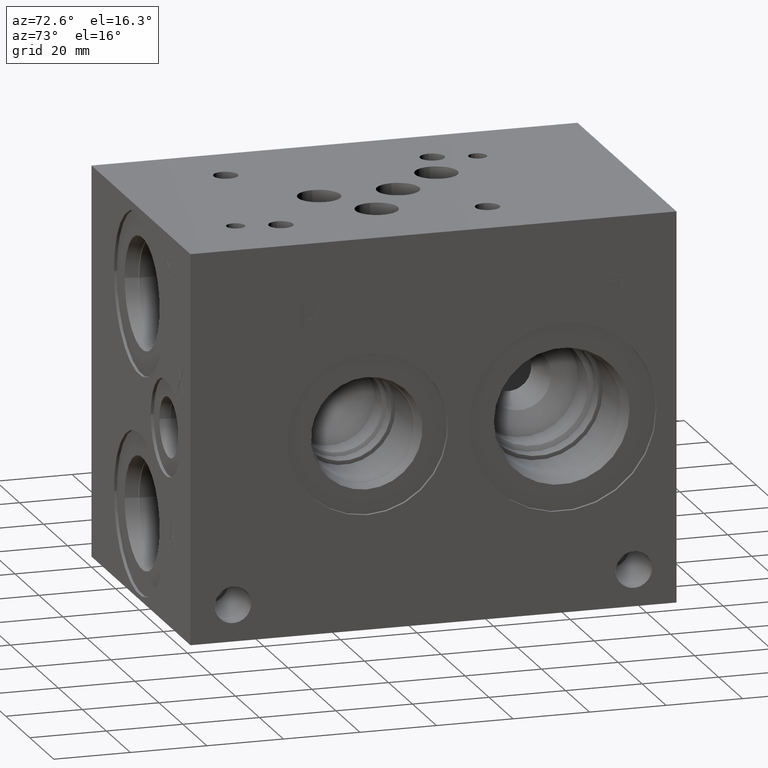
[diagram: clean part render]
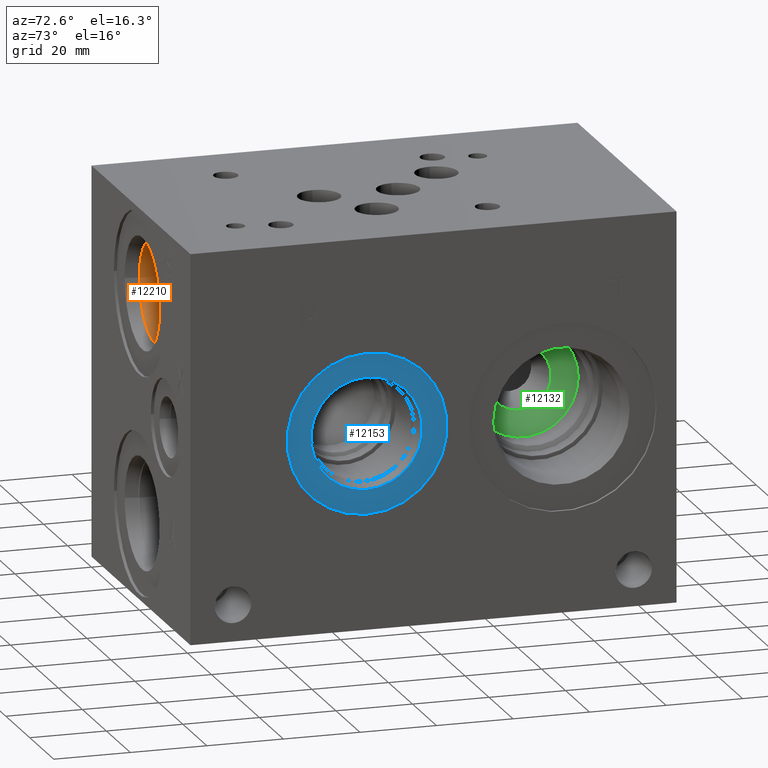
[diagram: same view with three faces highlighted in distinct colors, each labeled with its STEP entity id]
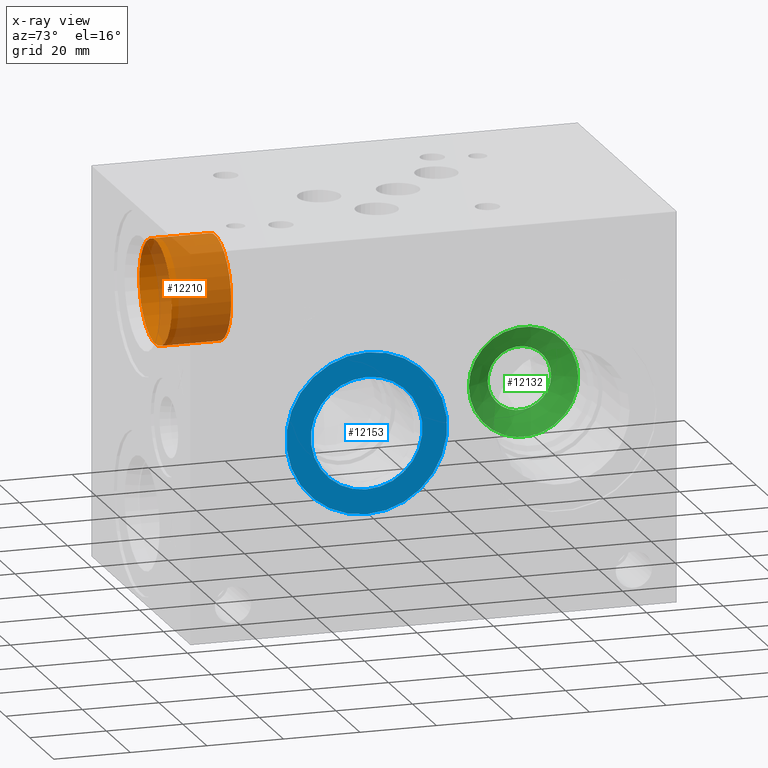
[diagram: x-ray of the same camera — body ghosted, the three highlighted faces saturated]
A machine part, auxiliary view with three faces highlighted in distinct colors.
The next image is the same camera in x-ray (body ghosted, the three faces saturated) — at least one of them is partly hidden behind the body in this view.
Their STEP definitions:

[orange] entity #12210 — the highlighted cylindrical surface (bore or boss wall) has radius 13.495 mm, axis along (0, -1, 0).
#54=CYLINDRICAL_SURFACE('',#12855,13.495);
#282=CIRCLE('',#12852,13.495);
#283=CIRCLE('',#12853,13.495);
#285=CIRCLE('',#12856,13.495);
#1498=FACE_OUTER_BOUND('',#2197,.T.);
#2197=EDGE_LOOP('',(#10518,#10519,#10520,#10521,#10522));
#3371=LINE('',#20816,#4515);
#4515=VECTOR('',#15254,13.495);
#5618=VERTEX_POINT('',#20807);
#5619=VERTEX_POINT('',#20808);
#5621=VERTEX_POINT('',#20814);
#7286=EDGE_CURVE('',#5618,#5619,#282,.T.);
#7287=EDGE_CURVE('',#5619,#5618,#283,.T.);
#7289=EDGE_CURVE('',#5621,#5621,#285,.T.);
#7290=EDGE_CURVE('',#5621,#5619,#3371,.T.);
#10518=ORIENTED_EDGE('',*,*,#7289,.F.);
#10519=ORIENTED_EDGE('',*,*,#7290,.T.);
#10520=ORIENTED_EDGE('',*,*,#7286,.F.);
#10521=ORIENTED_EDGE('',*,*,#7287,.F.);
#10522=ORIENTED_EDGE('',*,*,#7290,.F.);
#12210=ADVANCED_FACE('',(#1498),#54,.F.);
#12852=AXIS2_PLACEMENT_3D('',#20809,#15244,#15245);
#12853=AXIS2_PLACEMENT_3D('',#20810,#15246,#15247);
#12855=AXIS2_PLACEMENT_3D('',#20813,#15250,#15251);
#12856=AXIS2_PLACEMENT_3D('',#20815,#15252,#15253);
#15244=DIRECTION('center_axis',(0.,-1.,0.));
#15245=DIRECTION('ref_axis',(1.,0.,0.));
#15246=DIRECTION('center_axis',(0.,-1.,0.));
#15247=DIRECTION('ref_axis',(1.,0.,0.));
#15250=DIRECTION('center_axis',(0.,-1.,0.));
#15251=DIRECTION('ref_axis',(1.,0.,0.));
#15252=DIRECTION('center_axis',(0.,1.,0.));
#15253=DIRECTION('ref_axis',(1.,0.,0.));
#15254=DIRECTION('',(0.,1.,0.));
#20807=CARTESIAN_POINT('',(53.1698,19.8374,79.375));
#20808=CARTESIAN_POINT('',(26.1798,19.8374,79.375));
#20809=CARTESIAN_POINT('Origin',(39.6748,19.8374,79.375));
#20810=CARTESIAN_POINT('Origin',(39.6748,19.8374,79.375));
#20813=CARTESIAN_POINT('Origin',(39.6748,9.9187,79.375));
#20814=CARTESIAN_POINT('',(26.1798,4.285,79.375));
#20815=CARTESIAN_POINT('Origin',(39.6748,4.285,79.375));
#20816=CARTESIAN_POINT('',(26.1798,9.9187,79.375));

[blue] entity #12153 — the highlighted planar face has unit normal (-1, 0, 0).
#196=CIRCLE('',#12709,21.0185);
#197=CIRCLE('',#12710,21.0185);
#198=CIRCLE('',#12712,14.5923);
#199=CIRCLE('',#12713,14.5923);
#893=FACE_BOUND('',#2129,.T.);
#1441=FACE_OUTER_BOUND('',#2128,.T.);
#2128=EDGE_LOOP('',(#10240,#10241));
#2129=EDGE_LOOP('',(#10242,#10243));
#5525=VERTEX_POINT('',#20525);
#5526=VERTEX_POINT('',#20527);
#5527=VERTEX_POINT('',#20531);
#5528=VERTEX_POINT('',#20532);
#7155=EDGE_CURVE('',#5525,#5526,#196,.T.);
#7156=EDGE_CURVE('',#5526,#5525,#197,.T.);
#7157=EDGE_CURVE('',#5527,#5528,#198,.T.);
#7158=EDGE_CURVE('',#5528,#5527,#199,.T.);
#10240=ORIENTED_EDGE('',*,*,#7156,.F.);
#10241=ORIENTED_EDGE('',*,*,#7155,.F.);
#10242=ORIENTED_EDGE('',*,*,#7157,.T.);
#10243=ORIENTED_EDGE('',*,*,#7158,.T.);
#11133=PLANE('',#12711);
#12153=ADVANCED_FACE('',(#1441,#893),#11133,.F.);
#12709=AXIS2_PLACEMENT_3D('',#20528,#14913,#14914);
#12710=AXIS2_PLACEMENT_3D('',#20529,#14915,#14916);
#12711=AXIS2_PLACEMENT_3D('',#20530,#14917,#14918);
#12712=AXIS2_PLACEMENT_3D('',#20533,#14919,#14920);
#12713=AXIS2_PLACEMENT_3D('',#20534,#14921,#14922);
#14913=DIRECTION('center_axis',(-1.,0.,0.));
#14914=DIRECTION('ref_axis',(0.,0.,1.));
#14915=DIRECTION('center_axis',(-1.,0.,0.));
#14916=DIRECTION('ref_axis',(0.,0.,1.));
#14917=DIRECTION('center_axis',(-1.,0.,0.));
#14918=DIRECTION('ref_axis',(0.,0.,1.));
#14919=DIRECTION('center_axis',(-1.,0.,0.));
#14920=DIRECTION('ref_axis',(0.,0.,1.));
#14921=DIRECTION('center_axis',(-1.,0.,0.));
#14922=DIRECTION('ref_axis',(0.,0.,1.));
#20525=CARTESIAN_POINT('',(81.7626,46.2788,71.8185));
#20527=CARTESIAN_POINT('',(81.7626,46.2788,29.7815));
#20528=CARTESIAN_POINT('Origin',(81.7626,46.2788,50.8));
#20529=CARTESIAN_POINT('Origin',(81.7626,46.2788,50.8));
#20530=CARTESIAN_POINT('Origin',(81.7626,46.2788,36.2077));
#20531=CARTESIAN_POINT('',(81.7626,46.2788,36.2077));
#20532=CARTESIAN_POINT('',(81.7626,46.2788,65.3923));
#20533=CARTESIAN_POINT('Origin',(81.7626,46.2788,50.8));
#20534=CARTESIAN_POINT('Origin',(81.7626,46.2788,50.8));

[green] entity #12132 — the highlighted conical surface has half-angle 60 deg.
#81=CONICAL_SURFACE('',#12658,7.14375,1.0471975511966);
#166=CIRCLE('',#12659,14.2875);
#167=CIRCLE('',#12660,8.29239320143379);
#168=CIRCLE('',#12661,14.2875);
#1420=FACE_OUTER_BOUND('',#2104,.T.);
#2104=EDGE_LOOP('',(#10141,#10142,#10143,#10144,#10145));
#3308=LINE('',#20431,#4452);
#4452=VECTOR('',#14797,7.14375);
#5494=VERTEX_POINT('',#20427);
#5495=VERTEX_POINT('',#20428);
#5496=VERTEX_POINT('',#20430);
#7107=EDGE_CURVE('',#5494,#5495,#166,.T.);
#7108=EDGE_CURVE('',#5495,#5496,#3308,.T.);
#7109=EDGE_CURVE('',#5496,#5496,#167,.T.);
#7110=EDGE_CURVE('',#5495,#5494,#168,.T.);
#10141=ORIENTED_EDGE('',*,*,#7107,.T.);
#10142=ORIENTED_EDGE('',*,*,#7108,.T.);
#10143=ORIENTED_EDGE('',*,*,#7109,.F.);
#10144=ORIENTED_EDGE('',*,*,#7108,.F.);
#10145=ORIENTED_EDGE('',*,*,#7110,.T.);
#12132=ADVANCED_FACE('',(#1420),#81,.F.);
#12658=AXIS2_PLACEMENT_3D('',#20426,#14793,#14794);
#12659=AXIS2_PLACEMENT_3D('',#20429,#14795,#14796);
#12660=AXIS2_PLACEMENT_3D('',#20432,#14798,#14799);
#12661=AXIS2_PLACEMENT_3D('',#20433,#14800,#14801);
#14793=DIRECTION('center_axis',(1.,0.,0.));
#14794=DIRECTION('ref_axis',(0.,1.,0.));
#14795=DIRECTION('center_axis',(1.,0.,0.));
#14796=DIRECTION('ref_axis',(0.,1.,0.));
#14797=DIRECTION('',(-0.5,0.866025403784438,1.06057523872491E-16));
#14798=DIRECTION('center_axis',(1.,0.,0.));
#14799=DIRECTION('ref_axis',(0.,1.,0.));
#14800=DIRECTION('center_axis',(1.,0.,0.));
#14801=DIRECTION('ref_axis',(0.,1.,0.));
#20426=CARTESIAN_POINT('Origin',(45.7784640144766,97.2566,50.8));
#20427=CARTESIAN_POINT('',(49.90291,111.5441,50.8));
#20428=CARTESIAN_POINT('',(49.90291,82.9691,50.8));
#20429=CARTESIAN_POINT('Origin',(49.90291,97.2566,50.8));
#20430=CARTESIAN_POINT('',(46.4416334760272,88.9642067985662,50.8));
#20431=CARTESIAN_POINT('',(45.7784640144766,90.11285,50.8));
#20432=CARTESIAN_POINT('Origin',(46.4416334760272,97.2566,50.8));
#20433=CARTESIAN_POINT('Origin',(49.90291,97.2566,50.8));